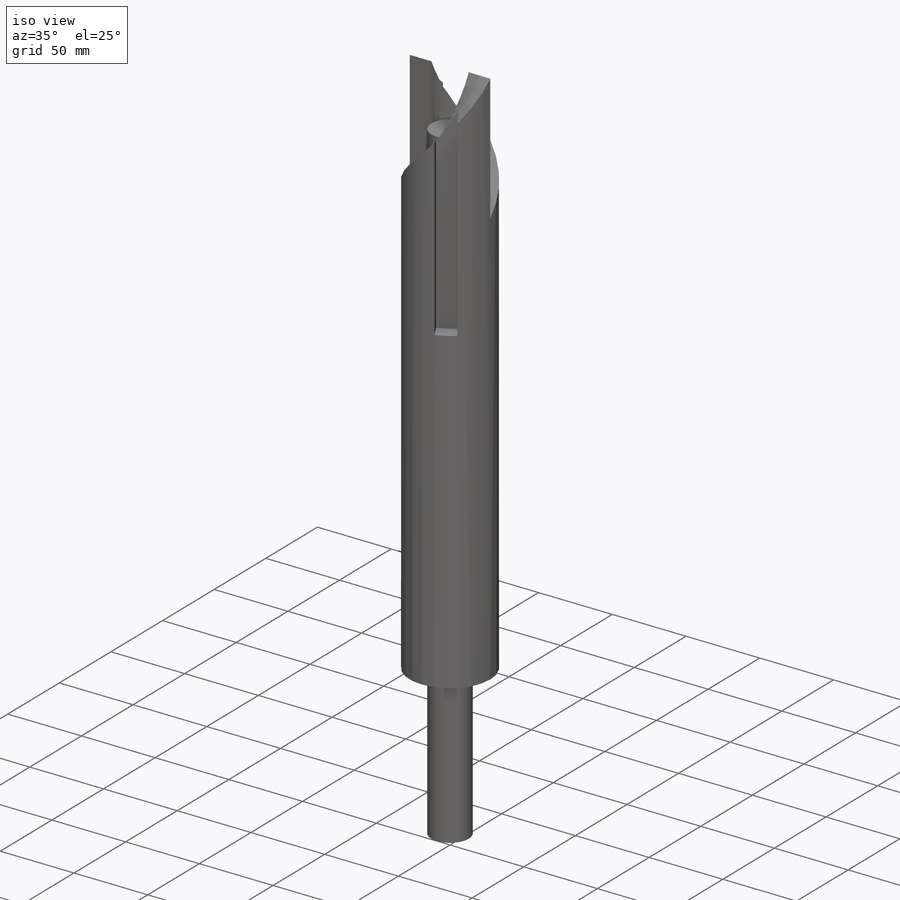
[diagram: iso view]
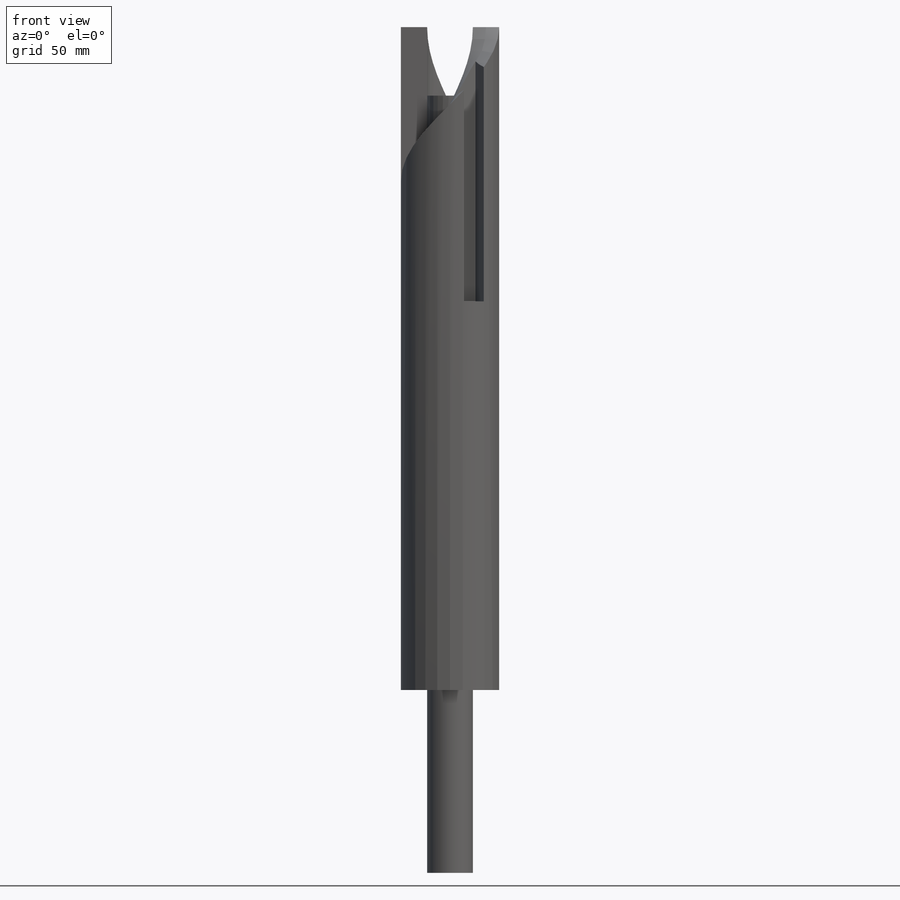
[diagram: front view]
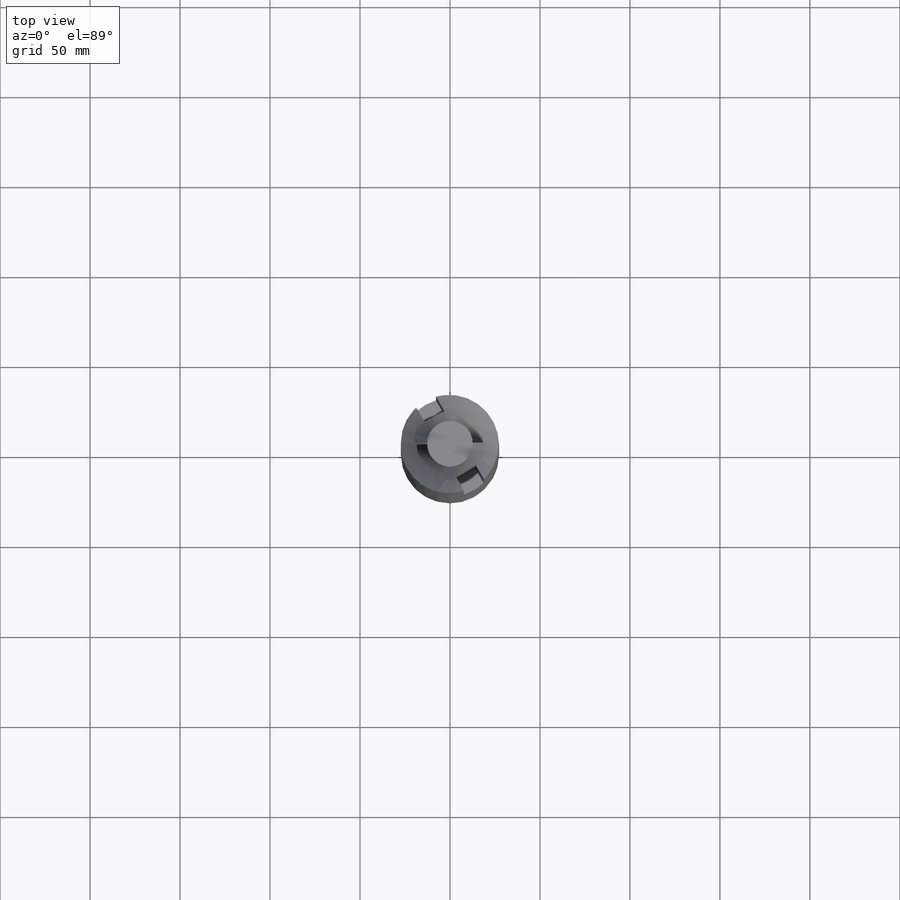
[diagram: top view]
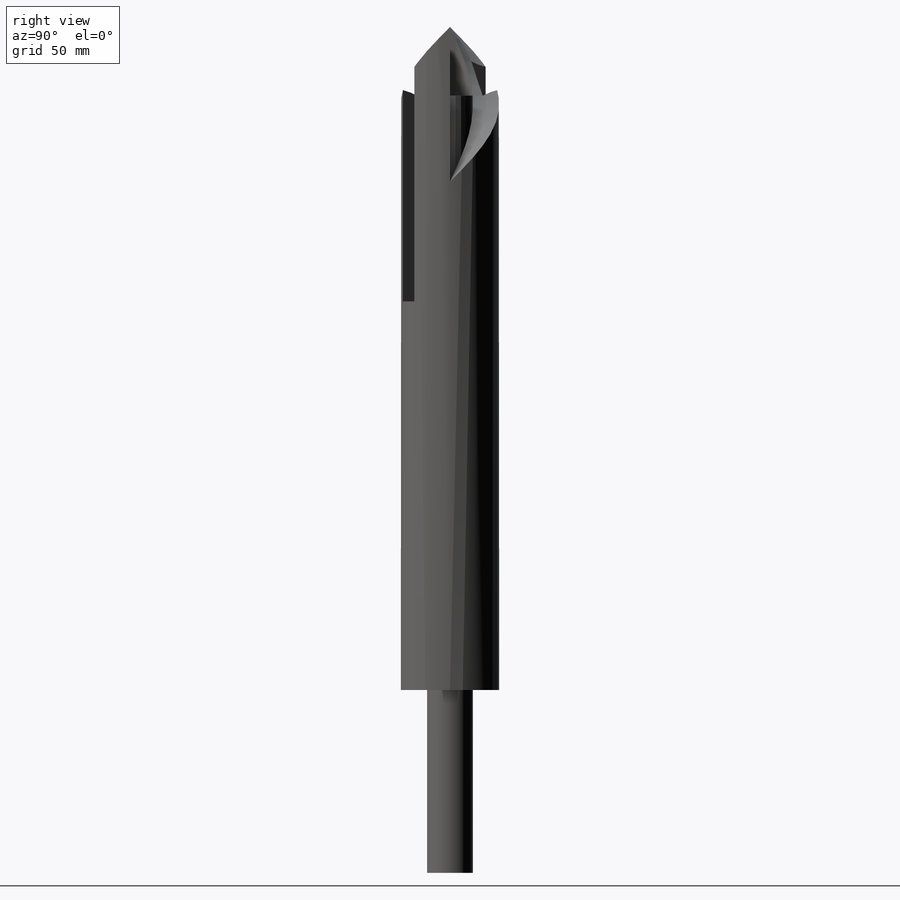
[diagram: right view]
SOLIDWORKS PART (.sldprt)
format: sldprt  version: not decoded by parser v0  size: 251,392 bytes
history: native  units: mm
features: sketch x7, cut_extrude x3, pattern_circular x2, material x1, revolve x1, sweep x1, cut_revolve x1 (+11 scaffold rows collapsed)
feature tree (27):
  scaffold x11  (default folders/planes/origin — collapsed)
  material  "ABS"
  sketch  "Sketch1"  dims[D1=27.305mm D2=0.0mm D3=381.0mm D4=12.7mm D5=101.6mm]
  revolve  "Revolve1"  Angle=360deg
  sketch  "Sketch2"  dims[D1=54.61mm D2=25.4mm]
  cut_extrude  "Cut-Extrude1"  Depth=12.7mm
  sketch  "Sketch3"  dims[c1.D1=14.605mm c1.D2=~85.781187mm c1.D3=0.0mm c1.D4=0.0mm c2.D3=0.0mm]
  sketch  "Sketch4"  dims[c1.D1=0.0mm c1.D2=0.0mm c2.D1=0.0mm c2.D2=0.0mm c3.D1=0.0mm c3.D2=0.0254mm c4.D2=~85.781187mm]
  sweep  "Cut-Sweep1"
  sketch  "Sketch6"  dims[c1.D1=12.7mm c2.D1=45.0deg c2.D2=0.0mm c3.D1=~17.302521mm]
  cut_extrude  "Cut-Extrude3"  Depth=152.4mm
  pattern_circular  "CirPattern3"  Count=2 Angle=180deg
  pattern_circular  "CirPattern4"  Count=2 Angle=180deg
  sketch  "Sketch7"
  cut_extrude  "Cut-Extrude4"  Depth=50.8mm
  sketch  "Sketch8"  dims[c1.D1=0.0mm c1.D2=~71.648227mm c2.D1=0.0mm c2.D2=50.8mm]
  cut_revolve  "Cut-Revolve1"  Angle=360deg
decode coverage: 13 of 15 modeling features carry decoded parameters
note: ~ marks probable driven/reference dimensions
note: suppression state not decoded; provenance and decode notes live in map.json
